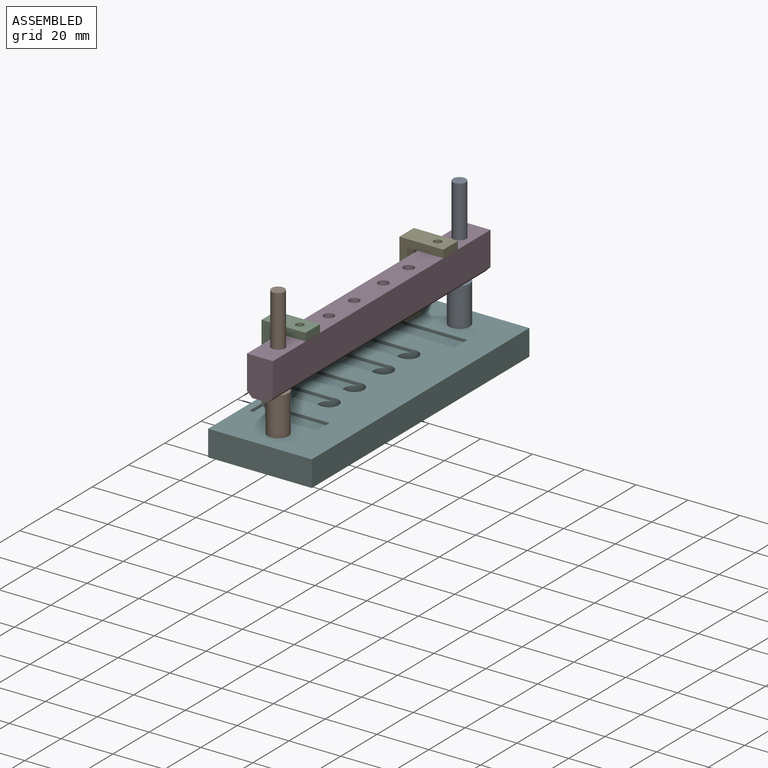
[diagram: assembled view]
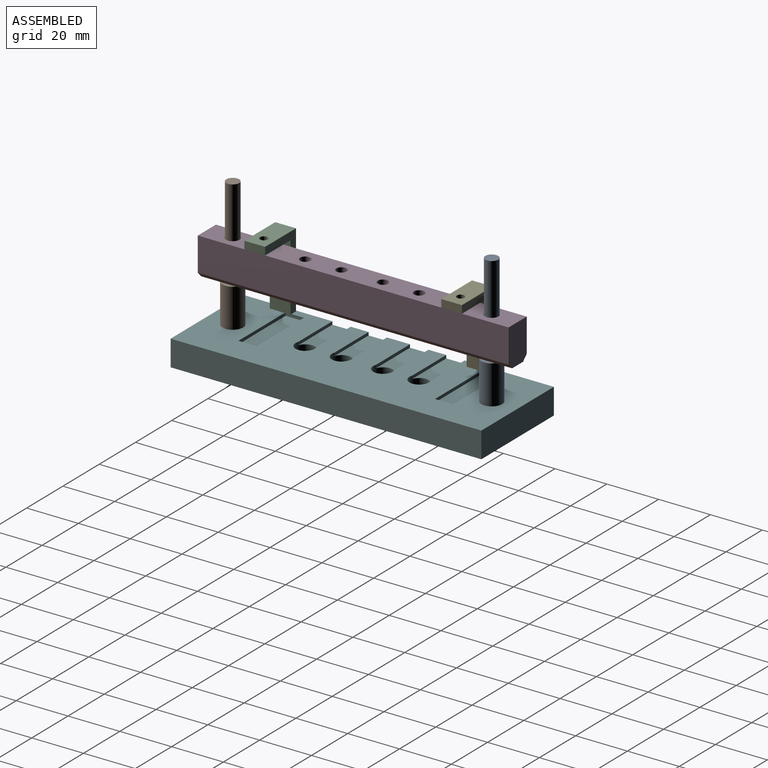
[diagram: assembled view, second angle]
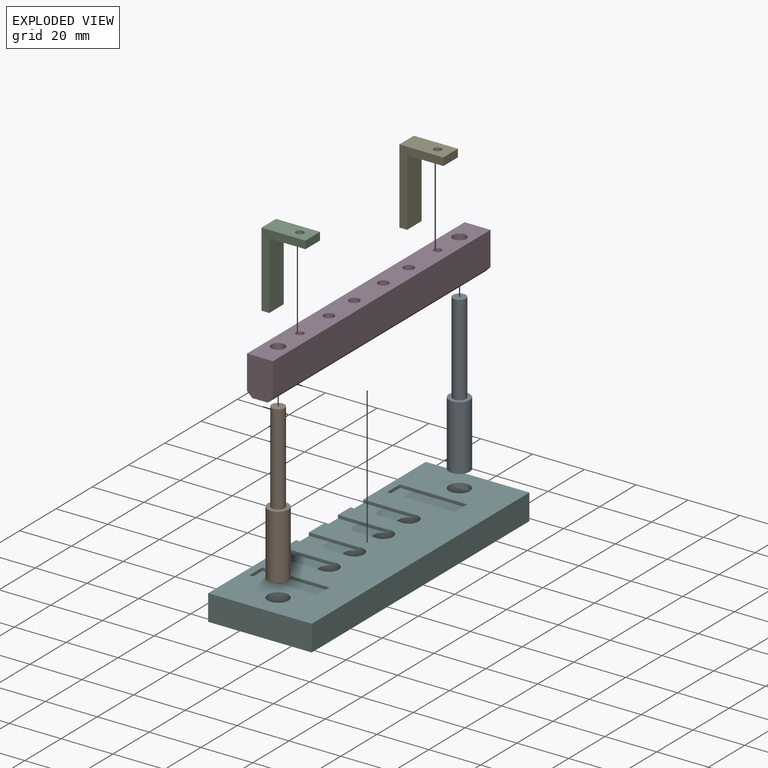
[diagram: exploded view]
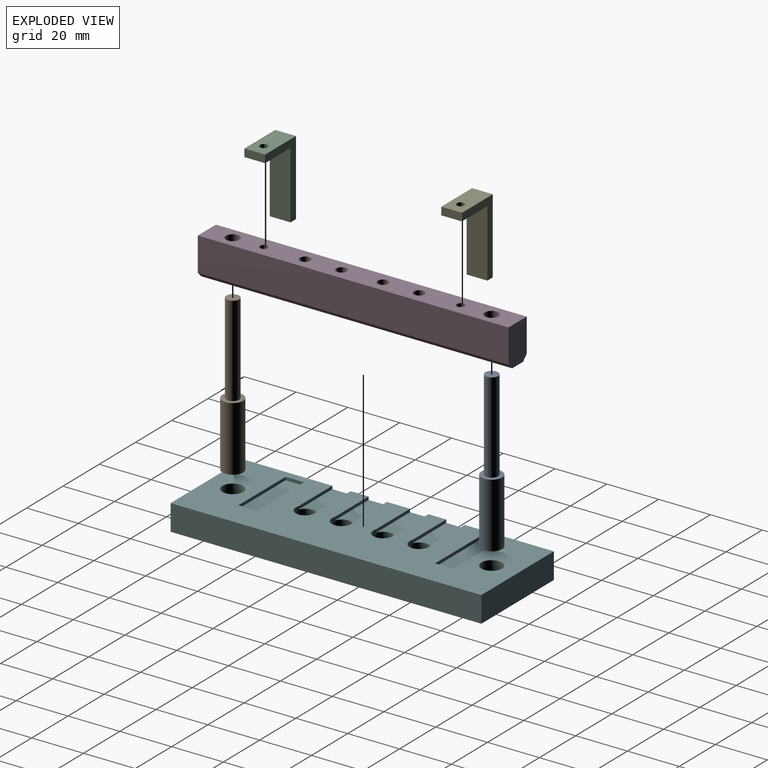
[diagram: exploded view, second angle]
ASSEMBLY  parts=6 mates=5
PART A: 5 faces, bbox 8x60x8 mm
  f0: cylinder r=4mm len=25mm, axis (0,1,0), area 628.3mm2, adj f1,f3
  f1: plane 8x8mm, normal (0,-1,0), area 50.3mm2, adj f0
  f2: cylinder r=2.5mm len=35mm, axis (0,1,0), area 549.8mm2, adj f3,f4
  f3: plane 8x8mm, normal (0,1,0), area 30.6mm2, adj f0,f2
  f4: plane 5x5mm, normal (0,1,0), area 19.6mm2, adj f2
PART B: same geometry as A
PART C: 9 faces, bbox 29x8x17 mm
  f0: plane 8x3mm, normal (-1,0,0), area 24mm2, adj f1,f5,f6,f7
  f1: plane 29x8mm, normal (0,0,-1), area 232mm2, adj f0,f2,f6,f7
  f2: plane 17x8mm, normal (1,0,0), area 128.9mm2, adj f1,f3,f6,f7,f8
  f3: plane 8x3mm, normal (0,0,1), area 24mm2, adj f2,f4,f6,f7
  f4: plane 14x8mm, normal (-1,0,0), area 104.9mm2, adj f3,f5,f6,f7,f8
  f5: plane 26x8mm, normal (0,0,1), area 208mm2, adj f0,f4,f6,f7
  f6: plane 29x17mm, normal (0,-1,0), area 129mm2, adj f0,f1,f2,f3,f4,f5
  f7: plane 29x17mm, normal (0,1,0), area 129mm2, adj f0,f1,f2,f3,f4,f5
  f8: cylinder r=1.5mm len=3mm, axis (1,0,0), area 28.3mm2, adj f2,f4
PART D: 16 faces, bbox 120x10x15 mm
  f0: plane 15x10mm, normal (1,0,0), area 146mm2, adj f1,f5,f12,f13,f14,f15
  f1: plane 120x13mm, normal (0,1,0), area 1560mm2, adj f0,f2,f13,f14
  f2: plane 15x10mm, normal (-1,0,0), area 146mm2, adj f1,f5,f12,f13,f14,f15
  f3: cylinder r=1.5mm len=15mm, axis (0,0,1), area 141.4mm2, adj f12,f13
  f4: cylinder r=1.5mm len=15mm, axis (0,0,1), area 141.4mm2, adj f12,f13
  f5: plane 120x13mm, normal (0,-1,0), area 1560mm2, adj f0,f2,f13,f15
  f6: cylinder r=2.6mm len=15mm, axis (0,0,1), area 245mm2, adj f12,f13
  f7: cylinder r=2.6mm len=15mm, axis (0,0,1), area 245mm2, adj f12,f13
  f8: cylinder r=2mm len=15mm, axis (0,0,1), area 188.5mm2, adj f12,f13
  f9: cylinder r=2mm len=15mm, axis (0,0,1), area 188.5mm2, adj f12,f13
  f10: cylinder r=2mm len=15mm, axis (0,0,1), area 188.5mm2, adj f12,f13
  f11: cylinder r=2mm len=15mm, axis (0,0,1), area 188.5mm2, adj f12,f13
  f12: plane 120x6mm, normal (0,0,-1), area 613.1mm2, adj f0,f2,f3,f4,f6,f7,f8,f9
  f13: plane 120x10mm, normal (0,0,1), area 1093.1mm2, adj f0,f1,f2,f3,f4,f5,f6,f7
  f14: plane 120x2mm, normal (0,0.71,-0.71), area 339.4mm2, adj f0,f1,f2,f12
  f15: plane 120x2mm, normal (0,-0.71,-0.71), area 339.4mm2, adj f0,f2,f5,f12
PART E: same geometry as C
PART F: 42 faces, bbox 40x120x10 mm
  f0: plane 120x40mm, normal (0,0,1), area 3672.6mm2, adj f1,f2,f3,f7,f8,f9,f12,f13
  f1: plane 40x10mm, normal (0,1,0), area 400mm2, adj f0,f2,f9,f11
  f2: plane 120x10mm, normal (-1,0,0), area 1165.9mm2, adj f0,f1,f3,f11,f12,f13,f14,f20
  f3: plane 40x10mm, normal (0,-1,0), area 400mm2, adj f0,f2,f9,f11
  f4: cylinder r=1.75mm len=5.8mm, axis (0,0,1), area 63.8mm2, adj f11,f39
  f5: cylinder r=1.75mm len=5.8mm, axis (0,0,1), area 63.8mm2, adj f11,f41
  f6: cylinder r=1.75mm len=5.8mm, axis (0,0,1), area 63.8mm2, adj f11,f35
  f7: cylinder r=4mm len=10mm, axis (0,0,1), area 251.3mm2, adj f0,f11
  f8: cylinder r=4mm len=10mm, axis (0,0,1), area 251.3mm2, adj f0,f11
  f9: plane 120x10mm, normal (1,0,0), area 1200mm2, adj f0,f1,f3,f11
  f10: cylinder r=1.75mm len=5.8mm, axis (0,0,1), area 63.8mm2, adj f11,f37
  f11: plane 120x40mm, normal (0,0,-1), area 4661mm2, adj f1,f2,f3,f4,f5,f6,f7,f8
  f12: plane 18.79x1.2mm, normal (0,-1,0), area 22.6mm2, adj f0,f2,f14,f40
  f13: plane 18.79x1.2mm, normal (0,1,0), area 22.6mm2, adj f0,f2,f14,f40
  f14: plane 18.79x7.1mm, normal (0,0,1), area 120.2mm2, adj f2,f12,f13,f40
  f15: plane 26x1.2mm, normal (0,-1,0), area 31.2mm2, adj f0,f16,f18,f19
  f16: plane 7.1x1.2mm, normal (1,0,0), area 8.5mm2, adj f0,f15,f17,f19
  f17: plane 26x1.2mm, normal (0,1,0), area 31.2mm2, adj f0,f16,f18,f19
  f18: plane 7.1x1.2mm, normal (-1,0,0), area 8.5mm2, adj f0,f15,f17,f19
  f19: plane 26x7.1mm, normal (0,0,1), area 184.6mm2, adj f15,f16,f17,f18
  f20: plane 18.79x1.2mm, normal (0,-1,0), area 22.6mm2, adj f0,f2,f22,f38
  f21: plane 18.79x1.2mm, normal (0,1,0), area 22.6mm2, adj f0,f2,f22,f38
  f22: plane 18.79x7.1mm, normal (0,0,1), area 120.2mm2, adj f2,f20,f21,f38
  f23: plane 18.79x1.2mm, normal (0,1,0), area 22.6mm2, adj f0,f2,f25,f36
  f24: plane 18.79x1.2mm, normal (0,-1,0), area 22.6mm2, adj f0,f2,f25,f36
  f25: plane 18.79x7.1mm, normal (0,0,1), area 120.2mm2, adj f2,f23,f24,f36
  f26: plane 18.79x1.2mm, normal (0,-1,0), area 22.6mm2, adj f0,f2,f28,f34
  f27: plane 18.79x1.2mm, normal (0,1,0), area 22.6mm2, adj f0,f2,f28,f34
  f28: plane 18.79x7.1mm, normal (0,0,1), area 120.2mm2, adj f2,f26,f27,f34
  f29: plane 7.1x1.2mm, normal (1,0,0), area 8.5mm2, adj f0,f30,f32,f33
  f30: plane 26x1.2mm, normal (0,1,0), area 31.2mm2, adj f0,f29,f31,f33
  f31: plane 7.1x1.2mm, normal (-1,0,0), area 8.5mm2, adj f0,f30,f32,f33
  f32: plane 26x1.2mm, normal (0,-1,0), area 31.2mm2, adj f0,f29,f31,f33
  f33: plane 26x7.1mm, normal (0,0,1), area 184.6mm2, adj f29,f30,f31,f32
  f34: cylinder r=3.75mm len=7.5mm, axis (0,0,1), area 87.8mm2, adj f0,f26,f27,f28,f35
  f35: plane 7.5x7.5mm, normal (0,0,1), area 34.6mm2, adj f6,f34
  f36: cylinder r=3.75mm len=7.5mm, axis (0,0,1), area 87.8mm2, adj f0,f23,f24,f25,f37
  f37: plane 7.5x7.5mm, normal (0,0,1), area 34.6mm2, adj f10,f36
  f38: cylinder r=3.75mm len=7.5mm, axis (0,0,1), area 87.8mm2, adj f0,f20,f21,f22,f39
  f39: plane 7.5x7.5mm, normal (0,0,1), area 34.6mm2, adj f4,f38
  f40: cylinder r=3.75mm len=7.5mm, axis (0,0,1), area 87.8mm2, adj f0,f12,f13,f14,f41
  f41: plane 7.5x7.5mm, normal (0,0,1), area 34.6mm2, adj f5,f40
PLACE A rot(axis=(1,0,0),90deg) t=(33.61,23.15,54.42)mm
PLACE B rot(axis=(1,0,0),90deg) t=(33.61,-76.85,54.42)mm
PLACE C rot(axis=(0.71,0,0.71),180deg) t=(30.11,-68.85,36.18)mm
PLACE D rot(axis=(0,0,1),90deg) t=(33.61,-26.85,34.68)mm
PLACE E rot(axis=(0.71,0,0.71),180deg) t=(30.11,7.15,36.18)mm
PLACE F t=(33.61,-26.85,4.42)mm fixed
MATE fastened B.f0 <-> F.f7  axis (0,0,-1) through (33.61,-76.85,-5.58)mm
MATE slider D.f7 <-> A.f0  axis (0,0,1) through (33.61,23.15,34.68)mm
MATE fastened A.f0 <-> F.f8  axis (0,0,-1) through (33.61,23.15,-5.58)mm
MATE fastened C.f8 <-> D.f4  axis (0,0,-1) through (33.61,-64.85,34.68)mm
MATE fastened E.f8 <-> D.f3  axis (0,0,-1) through (33.61,11.15,34.68)mm
